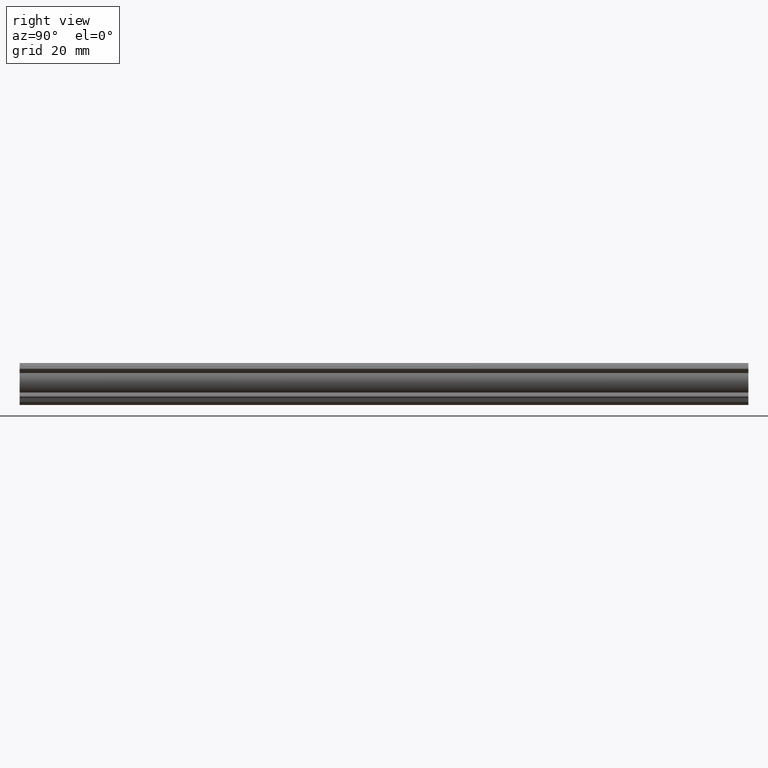
[diagram: clean part render]
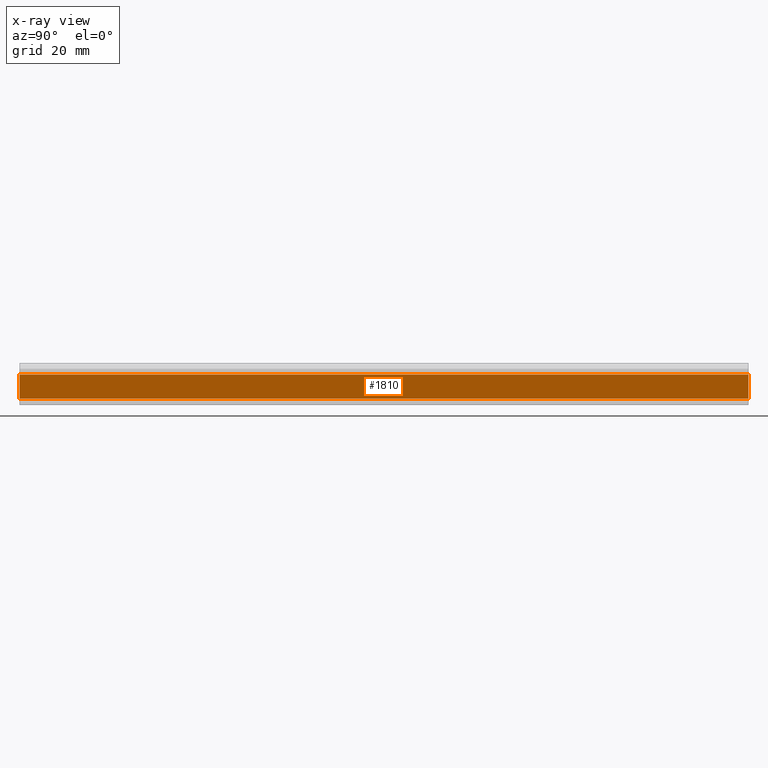
[diagram: x-ray — body ghosted, one internal face saturated and labeled with its STEP entity id]
A machine part, right view, then the same camera in x-ray: the body is ghosted and one INTERNAL B-rep face — a face not visible from any outside direction — is saturated and labeled: STEP entity #1810.
In plain terms, the highlighted face is a freeform B-spline surface patch.
Its self-contained STEP definition (entity closure, byte-faithful):
#1069=CARTESIAN_POINT('',(3.248177265198480,0.0,-3.181582037072005));
#1070=VERTEX_POINT('',#1069);
#1086=CARTESIAN_POINT('',(2.198768834054905,0.0,-9.807286108716969));
#1087=VERTEX_POINT('',#1086);
#1088=CARTESIAN_POINT('',(3.248177265198480,0.0,-3.181582037072005));
#1089=CARTESIAN_POINT('',(2.198768834054905,0.0,-9.807286108716969));
#1090=QUASI_UNIFORM_CURVE('',1,(#1088,#1089),.UNSPECIFIED.,.F.,.U.);
#1091=EDGE_CURVE('',#1070,#1087,#1090,.T.);
#1327=CARTESIAN_POINT('',(2.198768834054905,200.0,-9.807286108716969));
#1328=VERTEX_POINT('',#1327);
#1334=CARTESIAN_POINT('',(3.248177265198480,200.0,-3.181582037072005));
#1335=VERTEX_POINT('',#1334);
#1336=CARTESIAN_POINT('',(3.248177265198480,200.0,-3.181582037072005));
#1337=CARTESIAN_POINT('',(2.198768834054905,200.0,-9.807286108716969));
#1338=QUASI_UNIFORM_CURVE('',1,(#1336,#1337),.UNSPECIFIED.,.F.,.U.);
#1339=EDGE_CURVE('',#1335,#1328,#1338,.T.);
#1785=CARTESIAN_POINT('',(2.198768834054905,200.0,-9.807286108716969));
#1786=CARTESIAN_POINT('',(2.198768834054905,0.0,-9.807286108716969));
#1787=QUASI_UNIFORM_CURVE('',1,(#1785,#1786),.UNSPECIFIED.,.F.,.U.);
#1788=EDGE_CURVE('',#1328,#1087,#1787,.T.);
#1795=CARTESIAN_POINT('',(2.146350855399948,-9.989999612361194,-10.138240200845839));
#1796=CARTESIAN_POINT('',(3.300595243853484,-9.989999612361194,-2.850627944943141));
#1797=CARTESIAN_POINT('',(2.146350855399948,209.990004976779200,-10.138240200845839));
#1798=CARTESIAN_POINT('',(3.300595243853484,209.990004976779200,-2.850627944943141));
#1799=B_SPLINE_SURFACE_WITH_KNOTS('',1,1,((#1795,#1797),(#1796,#1798)),.UNSPECIFIED.,.F.,.F.,.U.,(2,2),(2,2),(0.0,7.378453259366743),(0.0,219.980004589140410),.UNSPECIFIED.);
#1800=ORIENTED_EDGE('',*,*,#1091,.F.);
#1801=CARTESIAN_POINT('',(3.248177265198480,200.0,-3.181582037072005));
#1802=CARTESIAN_POINT('',(3.248177265198480,0.0,-3.181582037072005));
#1803=QUASI_UNIFORM_CURVE('',1,(#1801,#1802),.UNSPECIFIED.,.F.,.U.);
#1804=EDGE_CURVE('',#1335,#1070,#1803,.T.);
#1805=ORIENTED_EDGE('',*,*,#1804,.F.);
#1806=ORIENTED_EDGE('',*,*,#1339,.T.);
#1807=ORIENTED_EDGE('',*,*,#1788,.T.);
#1808=EDGE_LOOP('',(#1800,#1805,#1806,#1807));
#1809=FACE_OUTER_BOUND('',#1808,.T.);
#1810=ADVANCED_FACE('',(#1809),#1799,.T.);